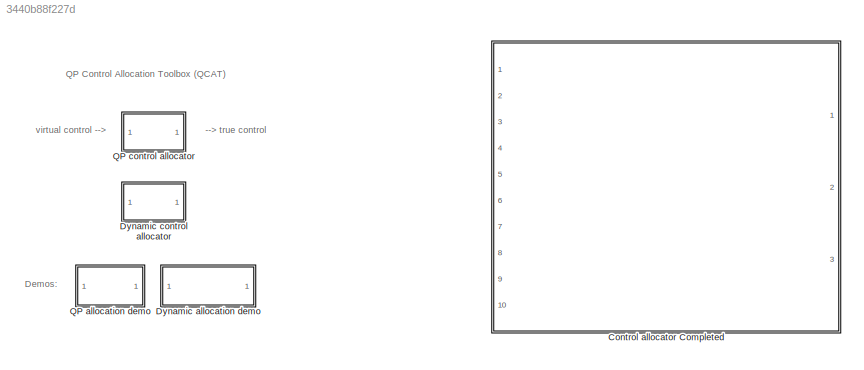
MODEL slx_3440b88f227d
KIND library
CONFIG AbsTol = auto
CONFIG FixedStep = auto
CONFIG MaxStep = auto
CONFIG MinStep = auto
CONFIG RelTol = 1e-3
CONFIG SampleTimeConstraint = Unconstrained
CONFIG Solver = ode45
CONFIG SolverMode = SingleTasking
CONFIG SolverName = ode45
CONFIG StartTime = 0.0
CONFIG StopTime = 10.0
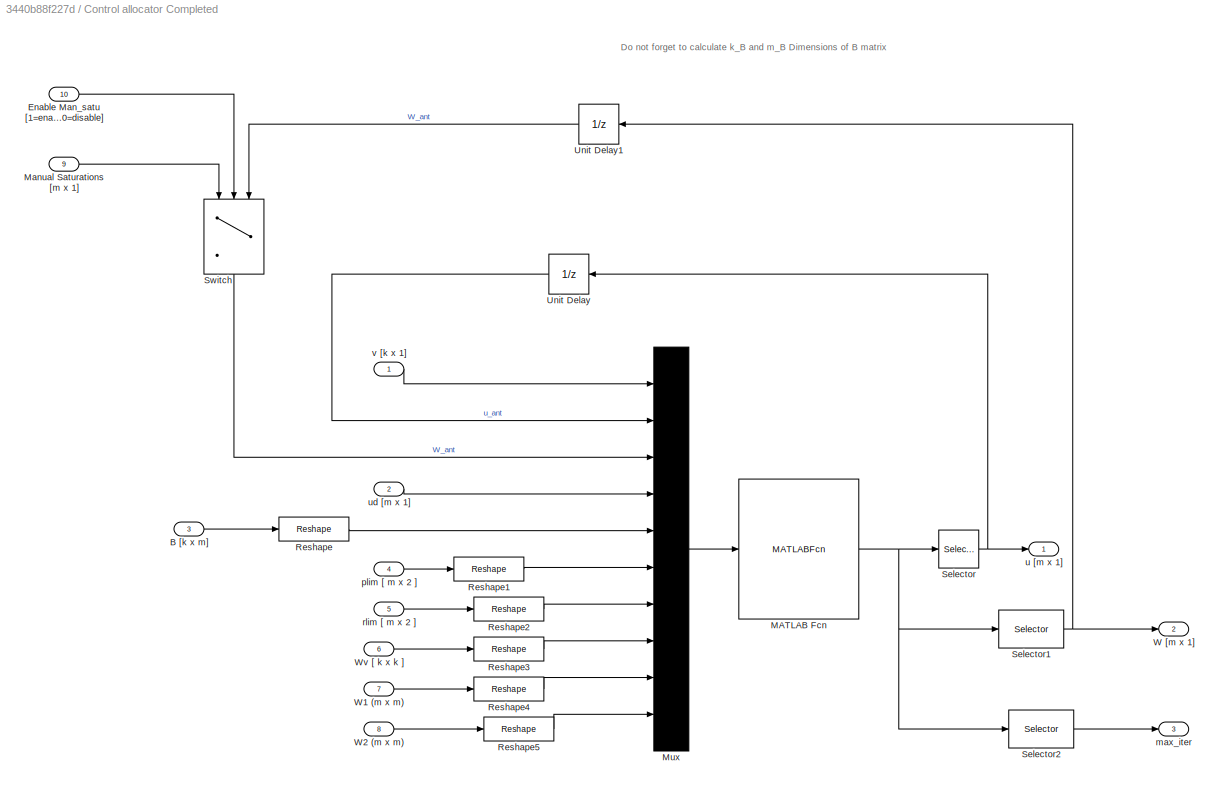
BLOCK [SubSystem] Control allocator Completed 
  Ports = [10, 3]
  RequestExecContextInheritance = off
  TreatAsAtomicUnit = on
BLOCK [Inport] Control allocator Completed /B [k x m]
  IconDisplay = Port number
  Port = 3
BLOCK [Inport] Control allocator Completed /Enable Man_satu [1=enable; 0=disable]
  IconDisplay = Port number
  Port = 10
BLOCK [MATLABFcn] Control allocator Completed /MATLAB Fcn
  MATLABFcn = CA_COMP(  u(1:k_B),  u(k_B+1:k_B+m_B),  u(k_B+m_B+1:k_B+2*m_B),  u(k_B+2*m_B+1:k_B+3*m_B),  u(k_B+3*m_B+1:k_B+3*m_B+m_B*k_B),  u(k_B+3*m_B+m_B*k_B+1:k_B+5*m_B+m_B*k_B),u(k_B+5*m_B+m_B*k_B+1:k_B+7*m_B+m_B*k_B),T,  u(k_B+7*m_B+m_B*k_B+1:k_B+7*m_B+m_B*k_B+k_B*k_B),  u(k_B+7*m_B+m_B*k_B+k_B*k_B+1:k_B+7*m_B+m_B*k_B+k_B*k_B+m_B*m_B),   u(k_B+7*m_B+m_B*k_B+k_B*k_B+m_B*m_B+1:k_B+7*m_B+m_B*k_B+k_B*k_B+2*m_...<+51ch>
  OutputDimensions = m_B*2+1
  Ports = [1, 1]
  SampleTime = T
BLOCK [Inport] Control allocator Completed /Manual Saturations [m x 1]
  IconDisplay = Port number
  Port = 9
BLOCK [Mux] Control allocator Completed /Mux
  DisplayOption = bar
  Inputs = 10
  Ports = [10, 1]
BLOCK [Reshape] Control allocator Completed /Reshape
  OutputDimensionality = Column vector (2-D)
  Ports = [1, 1]
BLOCK [Reshape] Control allocator Completed /Reshape1
  OutputDimensionality = Column vector (2-D)
  Ports = [1, 1]
BLOCK [Reshape] Control allocator Completed /Reshape2
  OutputDimensionality = Column vector (2-D)
  Ports = [1, 1]
BLOCK [Reshape] Control allocator Completed /Reshape3
  OutputDimensionality = Column vector (2-D)
  Ports = [1, 1]
BLOCK [Reshape] Control allocator Completed /Reshape4
  OutputDimensionality = Column vector (2-D)
  Ports = [1, 1]
BLOCK [Reshape] Control allocator Completed /Reshape5
  OutputDimensionality = Column vector (2-D)
  Ports = [1, 1]
BLOCK [Selector] Control allocator Completed /Selector
  Indices = [1:m_B]
  InputPortWidth = 2*m_B+1
  Ports = [1, 1]
BLOCK [Selector] Control allocator Completed /Selector1
  Indices = [m_B+1:2*m_B]
  InputPortWidth = m_B*2+1
  Ports = [1, 1]
BLOCK [Selector] Control allocator Completed /Selector2
  Indices = m_B*2+1
  InputPortWidth = m_B*2+1
  Ports = [1, 1]
BLOCK [Switch] Control allocator Completed /Switch
  InputSameDT = off
  SampleTime = T
  SaturateOnIntegerOverflow = off
  Threshold = 0.5
BLOCK [UnitDelay] Control allocator Completed /Unit Delay
  InitialCondition = zeros(m_B,1)
  SampleTime = T
BLOCK [UnitDelay] Control allocator Completed /Unit Delay1
  InitialCondition = zeros(m_B,1)
  SampleTime = T
BLOCK [Outport] Control allocator Completed /W  [m x 1]
  IconDisplay = Port number
  Port = 2
BLOCK [Inport] Control allocator Completed /W1 (m x m)
  IconDisplay = Port number
  Port = 7
BLOCK [Inport] Control allocator Completed /W2 (m x m)
  IconDisplay = Port number
  Port = 8
BLOCK [Inport] Control allocator Completed /Wv [ k x k ]
  IconDisplay = Port number
  Port = 6
BLOCK [Outport] Control allocator Completed /max_iter
  IconDisplay = Port number
  Port = 3
BLOCK [Inport] Control allocator Completed /plim [ m x 2 ]
  IconDisplay = Port number
  Port = 4
BLOCK [Inport] Control allocator Completed /rlim [ m x 2 ]
  IconDisplay = Port number
  Port = 5
BLOCK [Outport] Control allocator Completed /u [m x 1]
  IconDisplay = Port number
BLOCK [Inport] Control allocator Completed /ud [m x 1]
  IconDisplay = Port number
  Port = 2
BLOCK [Inport] Control allocator Completed /v [k x 1]
  IconDisplay = Port number
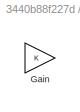
BLOCK [SubSystem] Dynamic allocation demo
  OpenFcn = open_system('dyn_alloc_demo')
  Ports = []
  RequestExecContextInheritance = off
BLOCK [Gain] Dynamic allocation demo/Gain
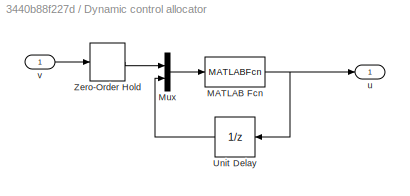
BLOCK [SubSystem] Dynamic control allocator
  Ports = [1, 1]
  RequestExecContextInheritance = off
BLOCK [MATLABFcn] Dynamic control allocator/MATLAB Fcn
  MATLABFcn = dyn_ca_sl(u,B,plim,rlim,T,Wv,W1,W2,S)
  OutputDimensions = size(B,2)
  Ports = [1, 1]
BLOCK [Mux] Dynamic control allocator/Mux
  DisplayOption = bar
  Inputs = 2
  Ports = [2, 1]
BLOCK [UnitDelay] Dynamic control allocator/Unit Delay
  SampleTime = T
BLOCK [ZeroOrderHold] Dynamic control allocator/Zero-Order Hold
  SampleTime = T
BLOCK [Outport] Dynamic control allocator/u
  IconDisplay = Port number
BLOCK [Inport] Dynamic control allocator/v
  IconDisplay = Port number
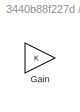
BLOCK [SubSystem] QP allocation demo
  OpenFcn = open_system('qp_alloc_demo')
  Ports = []
  RequestExecContextInheritance = off
BLOCK [Gain] QP allocation demo/Gain
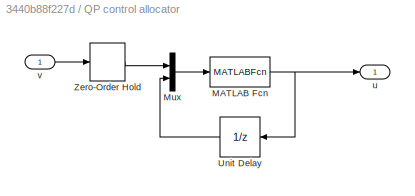
BLOCK [SubSystem] QP control allocator
  AncestorBlock = qcatlib/Dynamic control allocator
  Ports = [1, 1]
  RequestExecContextInheritance = off
BLOCK [MATLABFcn] QP control allocator/MATLAB Fcn
  MATLABFcn = qp_ca_sl(u,B,plim,rlim,T,Wv,Wu,ud,alg,imax,gam,tol)
  OutputDimensions = size(B,2)
  Ports = [1, 1]
BLOCK [Mux] QP control allocator/Mux
  DisplayOption = bar
  Inputs = 2
  Ports = [2, 1]
BLOCK [UnitDelay] QP control allocator/Unit Delay
  SampleTime = T
BLOCK [ZeroOrderHold] QP control allocator/Zero-Order Hold
  SampleTime = T
BLOCK [Outport] QP control allocator/u
  IconDisplay = Port number
BLOCK [Inport] QP control allocator/v
  IconDisplay = Port number
ANNOTATION (root): QP Control Allocation Toolbox (QCAT)
ANNOTATION (root): --> true control
ANNOTATION (root): Demos:
ANNOTATION (root): virtual control -->
ANNOTATION Control allocator Completed : Do not forget to calculate k_B and m_B Dimensions of B matrix
LINE Control allocator Completed /B [k x m]:1 -> Control allocator Completed /Reshape:1
LINE Control allocator Completed /Enable Man_satu [1=enable; 0=disable]:1 -> Control allocator Completed /Switch:2
NET Control allocator Completed /MATLAB Fcn:1 -> Control allocator Completed /Selector1:1, Control allocator Completed /Selector2:1, Control allocator Completed /Selector:1
LINE Control allocator Completed /Manual Saturations [m x 1]:1 -> Control allocator Completed /Switch:1
LINE Control allocator Completed /Mux:1 -> Control allocator Completed /MATLAB Fcn:1
LINE Control allocator Completed /Reshape1:1 -> Control allocator Completed /Mux:6
LINE Control allocator Completed /Reshape2:1 -> Control allocator Completed /Mux:7
LINE Control allocator Completed /Reshape3:1 -> Control allocator Completed /Mux:8
LINE Control allocator Completed /Reshape4:1 -> Control allocator Completed /Mux:9
LINE Control allocator Completed /Reshape5:1 -> Control allocator Completed /Mux:10
LINE Control allocator Completed /Reshape:1 -> Control allocator Completed /Mux:5
NET Control allocator Completed /Selector1:1 -> Control allocator Completed /Unit Delay1:1, Control allocator Completed /W  [m x 1]:1
LINE Control allocator Completed /Selector2:1 -> Control allocator Completed /max_iter:1
NET Control allocator Completed /Selector:1 -> Control allocator Completed /Unit Delay:1, Control allocator Completed /u [m x 1]:1
LINE Control allocator Completed /Switch:1 -> Control allocator Completed /Mux:3
LINE Control allocator Completed /Unit Delay1:1 -> Control allocator Completed /Switch:3
LINE Control allocator Completed /Unit Delay:1 -> Control allocator Completed /Mux:2
LINE Control allocator Completed /W1 (m x m):1 -> Control allocator Completed /Reshape4:1
LINE Control allocator Completed /W2 (m x m):1 -> Control allocator Completed /Reshape5:1
LINE Control allocator Completed /Wv [ k x k ]:1 -> Control allocator Completed /Reshape3:1
LINE Control allocator Completed /plim [ m x 2 ]:1 -> Control allocator Completed /Reshape1:1
LINE Control allocator Completed /rlim [ m x 2 ]:1 -> Control allocator Completed /Reshape2:1
LINE Control allocator Completed /ud [m x 1]:1 -> Control allocator Completed /Mux:4
LINE Control allocator Completed /v [k x 1]:1 -> Control allocator Completed /Mux:1
NET Dynamic control allocator/MATLAB Fcn:1 -> Dynamic control allocator/Unit Delay:1, Dynamic control allocator/u:1
LINE Dynamic control allocator/Mux:1 -> Dynamic control allocator/MATLAB Fcn:1
LINE Dynamic control allocator/Unit Delay:1 -> Dynamic control allocator/Mux:2
LINE Dynamic control allocator/Zero-Order Hold:1 -> Dynamic control allocator/Mux:1
LINE Dynamic control allocator/v:1 -> Dynamic control allocator/Zero-Order Hold:1
note: NET lines group one-source signal fan-out (src -> all destinations, sorted); 1:1 wires keep LINE
